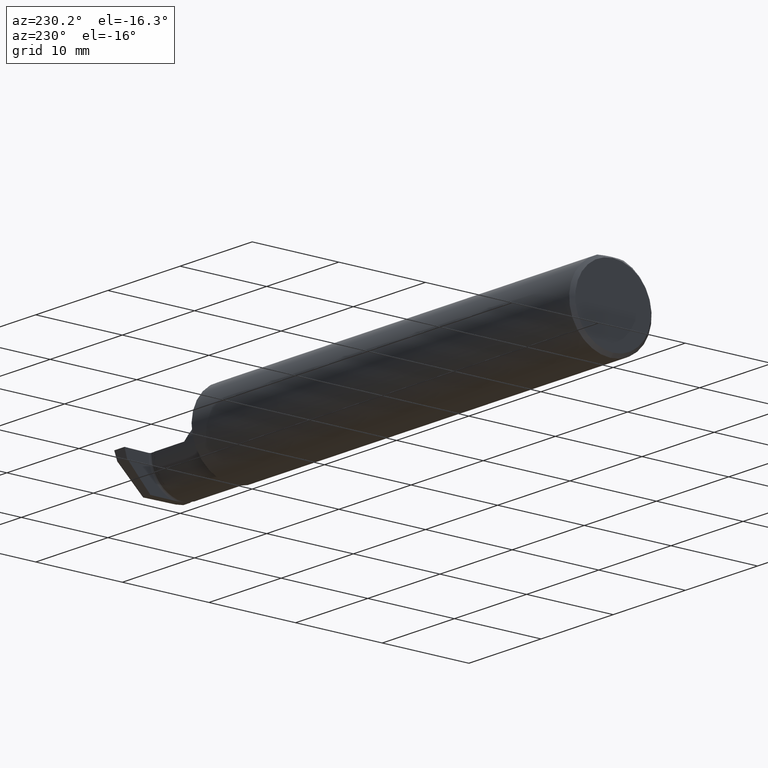
[diagram: clean part render]
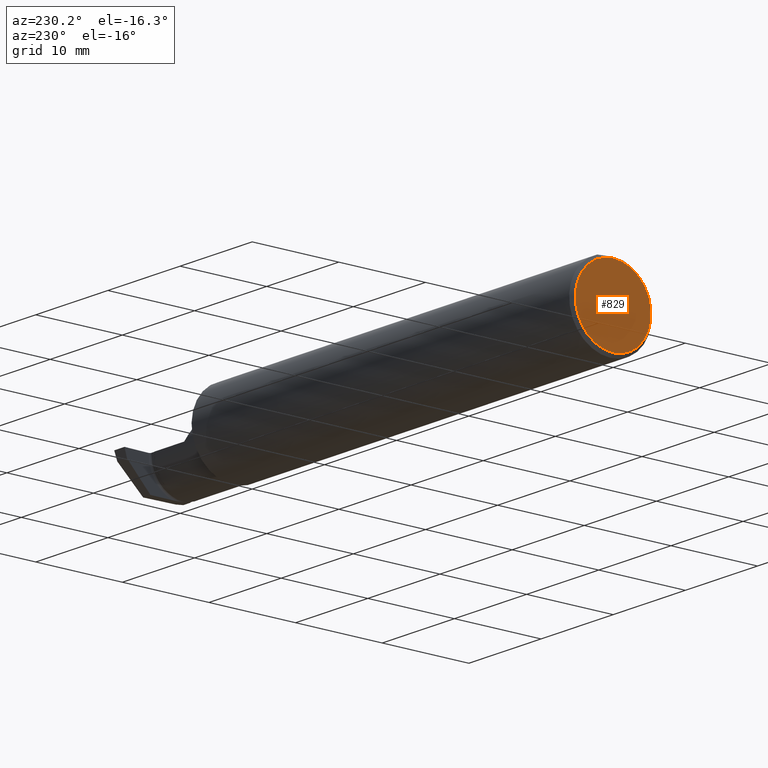
[diagram: same view with one face highlighted and labeled with its STEP entity id]
A machine part, auxiliary view. The second image highlights one B-rep face of the part: STEP entity #829.
In plain terms, the highlighted planar face has unit normal (1, 0, 0).
Its self-contained STEP definition (entity closure, byte-faithful):
#47 = CARTESIAN_POINT ( 'NONE',  ( 0.000000000000000000, 0.000000000000000000, 0.000000000000000000 ) ) ;
#81 = VERTEX_POINT ( 'NONE', #697 ) ;
#92 = CIRCLE ( 'NONE', #514, 0.1723499999999999754 ) ;
#113 = EDGE_LOOP ( 'NONE', ( #573, #721 ) ) ;
#169 = DIRECTION ( 'NONE',  ( -1.000000000000000000, -0.000000000000000000, -0.000000000000000000 ) ) ;
#253 = CARTESIAN_POINT ( 'NONE',  ( 0.000000000000000000, 0.000000000000000000, 0.000000000000000000 ) ) ;
#326 = CARTESIAN_POINT ( 'NONE',  ( 0.000000000000000000, 0.000000000000000000, 0.000000000000000000 ) ) ;
#327 = AXIS2_PLACEMENT_3D ( 'NONE', #253, #717, #793 ) ;
#370 = PLANE ( 'NONE',  #517 ) ;
#416 = EDGE_CURVE ( 'NONE', #81, #455, #92, .T. ) ;
#455 = VERTEX_POINT ( 'NONE', #659 ) ;
#514 = AXIS2_PLACEMENT_3D ( 'NONE', #326, #169, #642 ) ;
#517 = AXIS2_PLACEMENT_3D ( 'NONE', #47, #852, #546 ) ;
#546 = DIRECTION ( 'NONE',  ( 0.000000000000000000, 0.000000000000000000, -1.000000000000000000 ) ) ;
#573 = ORIENTED_EDGE ( 'NONE', *, *, #416, .T. ) ;
#622 = EDGE_CURVE ( 'NONE', #455, #81, #774, .T. ) ;
#642 = DIRECTION ( 'NONE',  ( 0.000000000000000000, 0.000000000000000000, 1.000000000000000000 ) ) ;
#659 = CARTESIAN_POINT ( 'NONE',  ( 0.000000000000000000, 2.202527268266524596E-17, 0.1723499999999999754 ) ) ;
#697 = CARTESIAN_POINT ( 'NONE',  ( 0.000000000000000000, 0.000000000000000000, -0.1723499999999999754 ) ) ;
#717 = DIRECTION ( 'NONE',  ( -1.000000000000000000, -0.000000000000000000, -0.000000000000000000 ) ) ;
#721 = ORIENTED_EDGE ( 'NONE', *, *, #622, .T. ) ;
#763 = FACE_OUTER_BOUND ( 'NONE', #113, .T. ) ;
#774 = CIRCLE ( 'NONE', #327, 0.1723499999999999754 ) ;
#793 = DIRECTION ( 'NONE',  ( 0.000000000000000000, 0.000000000000000000, 1.000000000000000000 ) ) ;
#829 = ADVANCED_FACE ( 'NONE', ( #763 ), #370, .F. ) ;
#852 = DIRECTION ( 'NONE',  ( 1.000000000000000000, 0.000000000000000000, 0.000000000000000000 ) ) ;